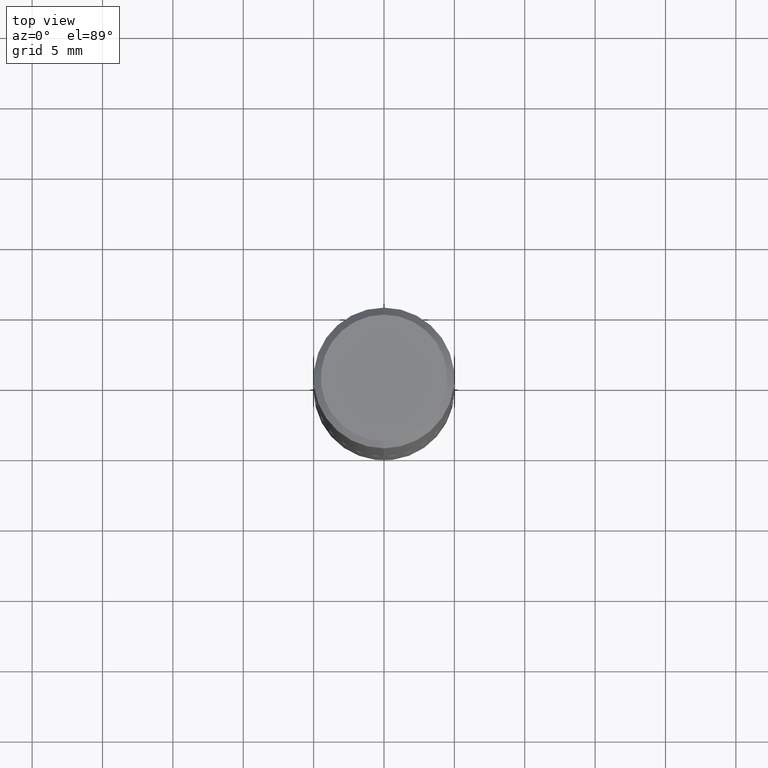
[diagram: clean part render]
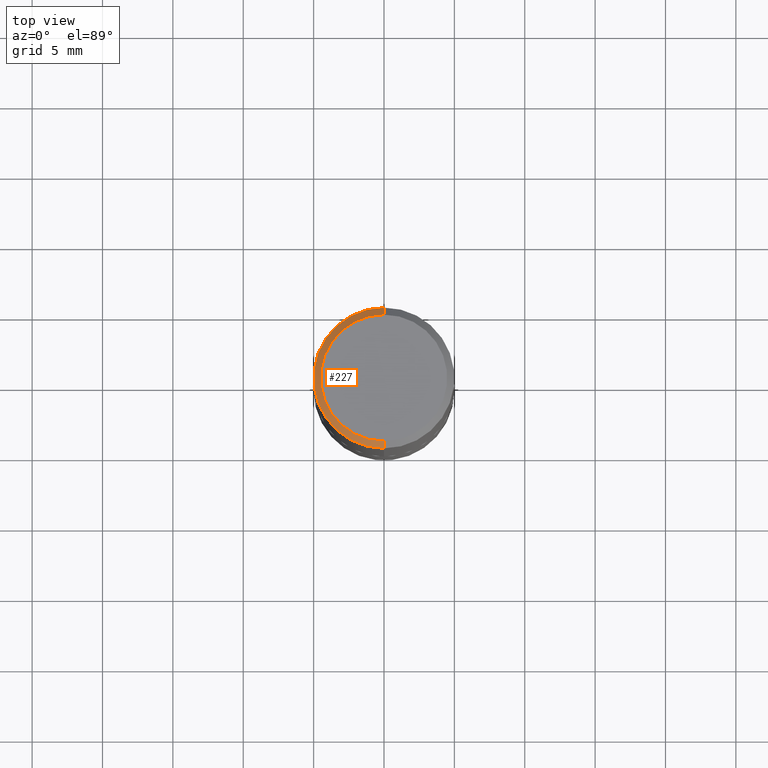
[diagram: same view with one face highlighted and labeled with its STEP entity id]
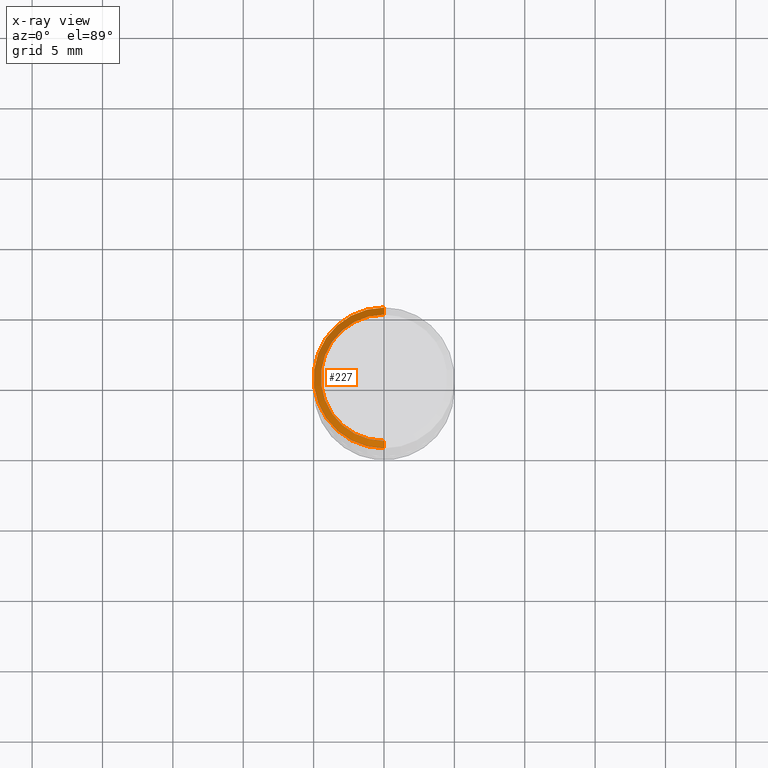
[diagram: x-ray of the same camera — body ghosted, the highlighted face saturated]
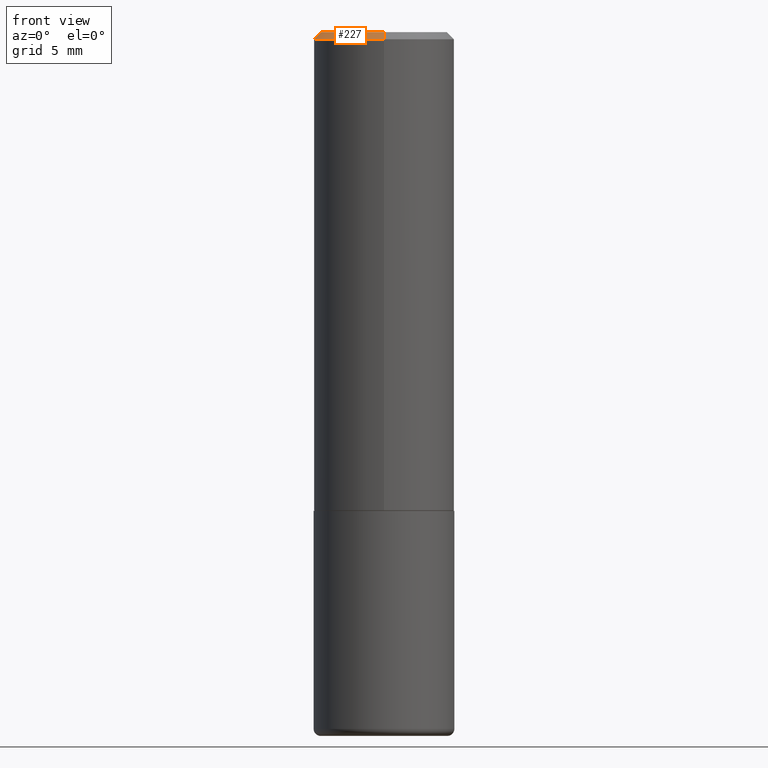
[diagram: same view with one face highlighted and labeled with its STEP entity id]
A machine part, top view. The second image highlights one B-rep face of the part: STEP entity #227.
The next image is the same camera in x-ray: the body ghosted, the highlighted face saturated — about 0% of this face is hidden behind the body in this view.
A second angle (front view) of the same face is appended — the face is thin or edge-on in the first view.
In plain terms, the highlighted conical surface has half-angle 45 deg.
Its self-contained STEP definition (entity closure, byte-faithful):
#18 = VERTEX_POINT ( 'NONE', #142 ) ;
#46 = LINE ( 'NONE', #140, #153 ) ;
#47 = DIRECTION ( 'NONE',  ( -6.982962677686265922E-15, -1.000000000000000000, 3.489961076653892857E-15 ) ) ;
#51 = AXIS2_PLACEMENT_3D ( 'NONE', #207, #162, #47 ) ;
#52 = CARTESIAN_POINT ( 'NONE',  ( 4.893060799195852986E-31, -6.979922153307800258E-17, -0.02000000000000004205 ) ) ;
#58 = DIRECTION ( 'NONE',  ( 2.446530399597921291E-29, -3.489961076653893251E-15, -1.000000000000000000 ) ) ;
#62 = EDGE_CURVE ( 'NONE', #109, #164, #326, .T. ) ;
#74 = EDGE_LOOP ( 'NONE', ( #141, #302, #398, #184 ) ) ;
#86 = DIRECTION ( 'NONE',  ( -6.982962677686265133E-15, -1.000000000000000000, 3.491137977679279029E-15 ) ) ;
#89 = CARTESIAN_POINT ( 'NONE',  ( 4.893060799195852986E-31, -6.979922153307800258E-17, -0.02000000000000004205 ) ) ;
#109 = VERTEX_POINT ( 'NONE', #329 ) ;
#119 = CARTESIAN_POINT ( 'NONE',  ( -1.350489030861325626E-15, -0.1968500000000001082, -0.01999999999999935510 ) ) ;
#120 = LINE ( 'NONE', #412, #294 ) ;
#128 = CIRCLE ( 'NONE', #221, 0.1968500000000000527 ) ;
#140 = CARTESIAN_POINT ( 'NONE',  ( -1.350489030861325626E-15, -0.1968500000000001082, -0.01999999999999935510 ) ) ;
#141 = ORIENTED_EDGE ( 'NONE', *, *, #177, .F. ) ;
#142 = CARTESIAN_POINT ( 'NONE',  ( 1.374596203102542200E-15, 0.1968499999999999694, -0.02000000000000072900 ) ) ;
#145 = DIRECTION ( 'NONE',  ( 6.982962677686265133E-15, 1.000000000000000000, -3.491137977679279029E-15 ) ) ;
#153 = VECTOR ( 'NONE', #336, 39.37007874015748143 ) ;
#162 = DIRECTION ( 'NONE',  ( -2.446530399597921291E-29, 3.489961076653893251E-15, 1.000000000000000000 ) ) ;
#164 = VERTEX_POINT ( 'NONE', #263 ) ;
#177 = EDGE_CURVE ( 'NONE', #164, #214, #46, .T. ) ;
#184 = ORIENTED_EDGE ( 'NONE', *, *, #409, .T. ) ;
#207 = CARTESIAN_POINT ( 'NONE',  ( -5.110514626656973596E-45, 7.290118745973661303E-31, 2.088882536467508497E-16 ) ) ;
#212 = DIRECTION ( 'NONE',  ( -2.446530399597921291E-29, 3.489961076653893251E-15, 1.000000000000000000 ) ) ;
#214 = VERTEX_POINT ( 'NONE', #119 ) ;
#221 = AXIS2_PLACEMENT_3D ( 'NONE', #89, #212, #86 ) ;
#223 = EDGE_CURVE ( 'NONE', #109, #18, #120, .T. ) ;
#227 = ADVANCED_FACE ( 'NONE', ( #347 ), #277, .T. ) ;
#263 = CARTESIAN_POINT ( 'NONE',  ( -1.281884050883609900E-15, -0.1768499999999998129, 8.260878700529913052E-16 ) ) ;
#277 = CONICAL_SURFACE ( 'NONE', #404, 0.1968500000000000527, 0.7853981633974477239 ) ;
#294 = VECTOR ( 'NONE', #410, 39.37007874015748143 ) ;
#302 = ORIENTED_EDGE ( 'NONE', *, *, #62, .F. ) ;
#326 = CIRCLE ( 'NONE', #51, 0.1768499999999998129 ) ;
#329 = CARTESIAN_POINT ( 'NONE',  ( 1.304766576325678705E-15, 0.1768499999999998129, -4.083113627594895072E-16 ) ) ;
#336 = DIRECTION ( 'NONE',  ( -4.851104656540961119E-15, -0.7071067811865495711, -0.7071067811865454633 ) ) ;
#347 = FACE_OUTER_BOUND ( 'NONE', #74, .T. ) ;
#398 = ORIENTED_EDGE ( 'NONE', *, *, #223, .T. ) ;
#404 = AXIS2_PLACEMENT_3D ( 'NONE', #52, #58, #145 ) ;
#409 = EDGE_CURVE ( 'NONE', #18, #214, #128, .T. ) ;
#410 = DIRECTION ( 'NONE',  ( 4.937700262164544887E-15, 0.7071067811865446862, -0.7071067811865503483 ) ) ;
#412 = CARTESIAN_POINT ( 'NONE',  ( 1.374596203102542200E-15, 0.1968499999999999694, -0.02000000000000072900 ) ) ;